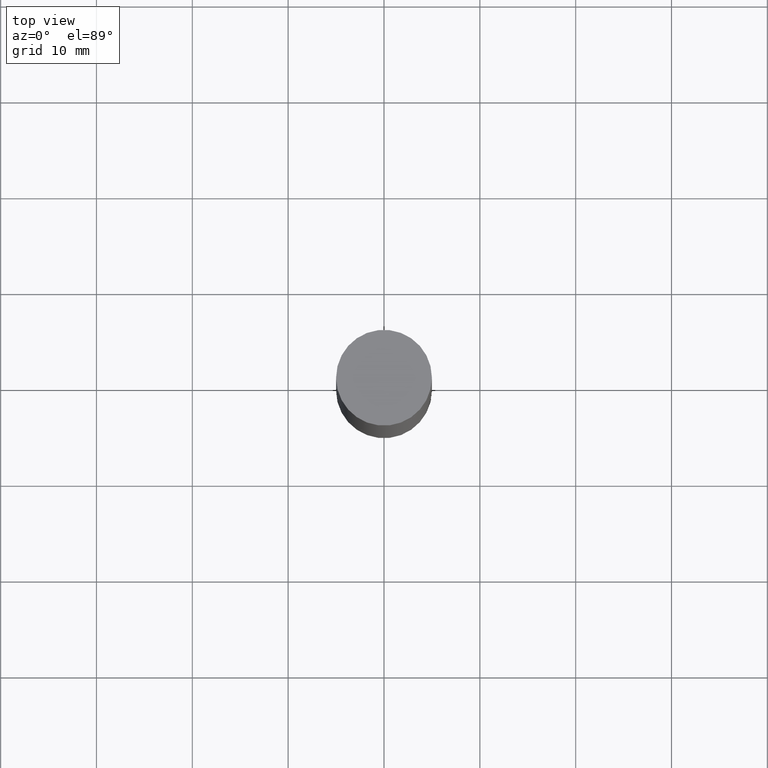
[diagram: clean part render]
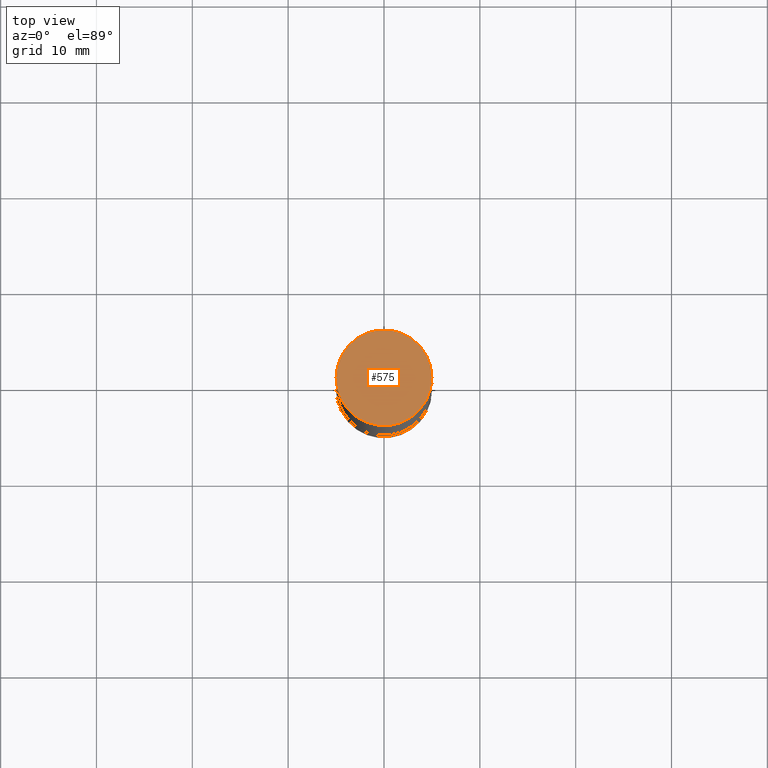
[diagram: same view with one face highlighted and labeled with its STEP entity id]
A machine part, top view. The second image highlights one B-rep face of the part: STEP entity #575.
In plain terms, the highlighted planar face has unit normal (0, 0, 1).
Its self-contained STEP definition (entity closure, byte-faithful):
#11 = EDGE_CURVE ( 'NONE', #594, #632, #358, .T. ) ;
#29 = CARTESIAN_POINT ( 'NONE',  ( 0.1968500000000000250, -1.372515848155552113E-15, 5.463695987328526437E-16 ) ) ;
#75 = FACE_OUTER_BOUND ( 'NONE', #327, .T. ) ;
#86 = AXIS2_PLACEMENT_3D ( 'NONE', #204, #627, #206 ) ;
#139 = AXIS2_PLACEMENT_3D ( 'NONE', #430, #233, #653 ) ;
#204 = CARTESIAN_POINT ( 'NONE',  ( 7.220980290903470182E-29, 2.080354946989631982E-18, 5.463695987328526437E-16 ) ) ;
#206 = DIRECTION ( 'NONE',  ( 1.000000000000000000, -6.982962677686265922E-15, 0.000000000000000000 ) ) ;
#233 = DIRECTION ( 'NONE',  ( 2.445468806185136597E-29, 3.492890411551752677E-15, 1.000000000000000000 ) ) ;
#240 = PLANE ( 'NONE',  #402 ) ;
#250 = ORIENTED_EDGE ( 'NONE', *, *, #11, .T. ) ;
#327 = EDGE_LOOP ( 'NONE', ( #336, #250 ) ) ;
#336 = ORIENTED_EDGE ( 'NONE', *, *, #350, .T. ) ;
#339 = CARTESIAN_POINT ( 'NONE',  ( 1.374596203102613789E-15, 0.1968500000000000250, -5.463695987328526437E-16 ) ) ;
#350 = EDGE_CURVE ( 'NONE', #632, #594, #356, .T. ) ;
#356 = CIRCLE ( 'NONE', #86, 0.1968500000000000250 ) ;
#358 = CIRCLE ( 'NONE', #139, 0.1968500000000000250 ) ;
#402 = AXIS2_PLACEMENT_3D ( 'NONE', #339, #452, #410 ) ;
#410 = DIRECTION ( 'NONE',  ( -1.000000000000000000, 6.982962677686265922E-15, -9.839502134516470631E-33 ) ) ;
#430 = CARTESIAN_POINT ( 'NONE',  ( 7.220980290903470182E-29, 2.080354946989631982E-18, 5.463695987328526437E-16 ) ) ;
#452 = DIRECTION ( 'NONE',  ( 2.438088387897959769E-29, 3.492890411551753071E-15, 1.000000000000000000 ) ) ;
#575 = ADVANCED_FACE ( 'NONE', ( #75 ), #240, .T. ) ;
#594 = VERTEX_POINT ( 'NONE', #600 ) ;
#600 = CARTESIAN_POINT ( 'NONE',  ( -0.1968500000000000250, 3.899287883846529545E-16, 5.463695987328561936E-16 ) ) ;
#627 = DIRECTION ( 'NONE',  ( 2.445468806185136597E-29, 3.492890411551752677E-15, 1.000000000000000000 ) ) ;
#632 = VERTEX_POINT ( 'NONE', #29 ) ;
#653 = DIRECTION ( 'NONE',  ( 1.000000000000000000, -6.982962677686265922E-15, 0.000000000000000000 ) ) ;